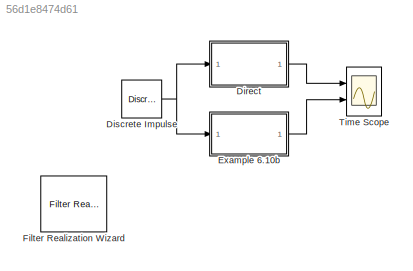
MODEL slx_56d1e8474d61
KIND model
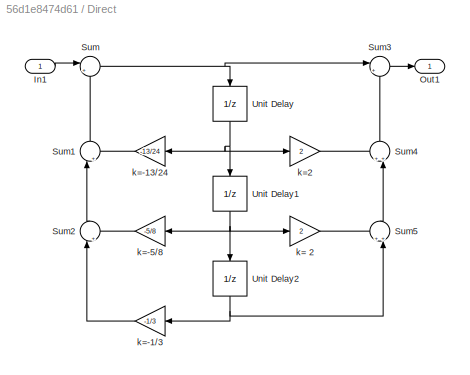
BLOCK [SubSystem] Direct
  Ports = [1, 1]
  RequestExecContextInheritance = off
BLOCK [Inport] Direct/In1
  IconDisplay = Port number
BLOCK [Outport] Direct/Out1
  IconDisplay = Port number
BLOCK [Sum] Direct/Sum
  IconShape = round
  InputSameDT = off
  Inputs = |++
  OutDataTypeStr = Inherit: Inherit via internal rule
  Ports = [2, 1]
  SaturateOnIntegerOverflow = off
BLOCK [Sum] Direct/Sum1
  IconShape = round
  InputSameDT = off
  Inputs = |++
  OutDataTypeStr = Inherit: Inherit via internal rule
  Ports = [2, 1]
  SaturateOnIntegerOverflow = off
BLOCK [Sum] Direct/Sum2
  IconShape = round
  InputSameDT = off
  Inputs = |++
  OutDataTypeStr = Inherit: Inherit via internal rule
  Ports = [2, 1]
  SaturateOnIntegerOverflow = off
BLOCK [Sum] Direct/Sum3
  IconShape = round
  InputSameDT = off
  Inputs = |++
  OutDataTypeStr = Inherit: Inherit via internal rule
  Ports = [2, 1]
  SaturateOnIntegerOverflow = off
BLOCK [Sum] Direct/Sum4
  IconShape = round
  InputSameDT = off
  Inputs = ++|
  OutDataTypeStr = Inherit: Inherit via internal rule
  Ports = [2, 1]
  SaturateOnIntegerOverflow = off
BLOCK [Sum] Direct/Sum5
  IconShape = round
  InputSameDT = off
  Inputs = ++|
  OutDataTypeStr = Inherit: Inherit via internal rule
  Ports = [2, 1]
  SaturateOnIntegerOverflow = off
BLOCK [UnitDelay] Direct/Unit Delay
  SampleTime = -1
BLOCK [UnitDelay] Direct/Unit Delay1
  SampleTime = -1
BLOCK [UnitDelay] Direct/Unit Delay2
  SampleTime = -1
BLOCK [Gain] Direct/k= 2
  Gain = 2
  OutDataTypeStr = Inherit: Inherit via internal rule
  ParamDataTypeStr = Inherit: Inherit via internal rule
  SaturateOnIntegerOverflow = off
BLOCK [Gain] Direct/k=-1//3
  Gain = -1/3
  OutDataTypeStr = Inherit: Inherit via internal rule
  ParamDataTypeStr = Inherit: Inherit via internal rule
  SaturateOnIntegerOverflow = off
BLOCK [Gain] Direct/k=-13//24
  Gain = -13/24
  OutDataTypeStr = Inherit: Inherit via internal rule
  ParamDataTypeStr = Inherit: Inherit via internal rule
  SaturateOnIntegerOverflow = off
BLOCK [Gain] Direct/k=-5//8
  Gain = -5/8
  OutDataTypeStr = Inherit: Inherit via internal rule
  ParamDataTypeStr = Inherit: Inherit via internal rule
  SaturateOnIntegerOverflow = off
BLOCK [Gain] Direct/k=2
  Gain = 2
  OutDataTypeStr = Inherit: Inherit via internal rule
  ParamDataTypeStr = Inherit: Inherit via internal rule
  SaturateOnIntegerOverflow = off
BLOCK [Reference] Discrete Impulse  REF=dspsrcs4/Discrete 
Impulse
  Delay = 0
  FrameSample = 1
  LastOutDataTypeStr = double
  OutDataTypeStr = double
  Ports = [0, 1]
  SampleTime = 1
  SourceBlock = dspsrcs4/Discrete \nImpulse
  SourceType = Discrete Impulse
  additionalParams = off
  allowOverrides = on
  dataType = double
  fracBitsMode = Best precision
  isSigned = on
  numFracBits = 15
  udDataType = sfix(16)
  wordLen = 16
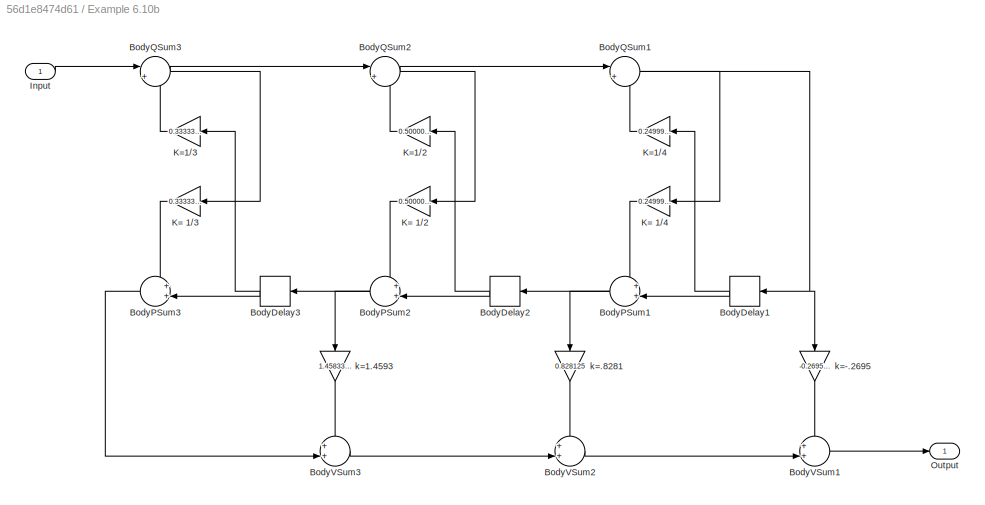
BLOCK [SubSystem] Example 6.10b
  ErrorFcn = dspFilterRealizedInBasicElemsAlgLoopErrFcnCallback
  Ports = [1, 1]
  RequestExecContextInheritance = off
  Tag = FilterWizardSubSystem
  UserDataPersistent = on
BLOCK [Delay] Example 6.10b/BodyDelay1
  DelayLength = 1
  InputPortMap = u0
  InputProcessing = Inherited
  Ports = [1, 1]
BLOCK [Delay] Example 6.10b/BodyDelay2
  DelayLength = 1
  InputPortMap = u0
  InputProcessing = Inherited
  Ports = [1, 1]
BLOCK [Delay] Example 6.10b/BodyDelay3
  DelayLength = 1
  InputPortMap = u0
  InputProcessing = Inherited
  Ports = [1, 1]
BLOCK [Sum] Example 6.10b/BodyPSum1
  IconShape = round
  InputSameDT = off
  Inputs = ++|
  Ports = [2, 1]
  RndMeth = Nearest
BLOCK [Sum] Example 6.10b/BodyPSum2
  IconShape = round
  InputSameDT = off
  Inputs = ++|
  Ports = [2, 1]
  RndMeth = Nearest
BLOCK [Sum] Example 6.10b/BodyPSum3
  IconShape = round
  InputSameDT = off
  Inputs = ++|
  Ports = [2, 1]
  RndMeth = Nearest
BLOCK [Sum] Example 6.10b/BodyQSum1
  IconShape = round
  InputSameDT = off
  Inputs = |+-
  Ports = [2, 1]
  RndMeth = Nearest
BLOCK [Sum] Example 6.10b/BodyQSum2
  IconShape = round
  InputSameDT = off
  Inputs = |+-
  Ports = [2, 1]
  RndMeth = Nearest
BLOCK [Sum] Example 6.10b/BodyQSum3
  IconShape = round
  InputSameDT = off
  Inputs = |+-
  Ports = [2, 1]
  RndMeth = Nearest
BLOCK [Sum] Example 6.10b/BodyVSum1
  IconShape = round
  InputSameDT = off
  Inputs = ++|
  Ports = [2, 1]
  RndMeth = Nearest
BLOCK [Sum] Example 6.10b/BodyVSum2
  IconShape = round
  InputSameDT = off
  Inputs = ++|
  Ports = [2, 1]
  RndMeth = Nearest
BLOCK [Sum] Example 6.10b/BodyVSum3
  IconShape = round
  InputSameDT = off
  Inputs = ++|
  Ports = [2, 1]
  RndMeth = Nearest
BLOCK [Inport] Example 6.10b/Input
  IconDisplay = Port number
BLOCK [Gain] Example 6.10b/K= 1//2
  Gain = 0.50000000000000011
  ParamDataTypeStr = float('double')
  RndMeth = Nearest
BLOCK [Gain] Example 6.10b/K= 1//3
  Gain = 0.33333333333333331
  ParamDataTypeStr = float('double')
  RndMeth = Nearest
BLOCK [Gain] Example 6.10b/K= 1//4
  Gain = 0.24999999999999997
  ParamDataTypeStr = float('double')
  RndMeth = Nearest
BLOCK [Gain] Example 6.10b/K=1//2
  Gain = 0.50000000000000011
  ParamDataTypeStr = float('double')
  RndMeth = Nearest
BLOCK [Gain] Example 6.10b/K=1//3
  Gain = 0.33333333333333331
  ParamDataTypeStr = float('double')
  RndMeth = Nearest
BLOCK [Gain] Example 6.10b/K=1//4
  Gain = 0.24999999999999997
  ParamDataTypeStr = float('double')
  RndMeth = Nearest
BLOCK [Outport] Example 6.10b/Output
  IconDisplay = Port number
BLOCK [Gain] Example 6.10b/k=-.2695
  Gain = -0.26953125000000022
  ParamDataTypeStr = float('double')
  RndMeth = Nearest
BLOCK [Gain] Example 6.10b/k=.8281
  Gain = 0.828125
  ParamDataTypeStr = float('double')
  RndMeth = Nearest
BLOCK [Gain] Example 6.10b/k=1.4593
  Gain = 1.4583333333333335
  ParamDataTypeStr = float('double')
  RndMeth = Nearest
BLOCK [Reference] Filter Realization Wizard  REF=dsparch4/Filter
Realization
Wizard
  Ports = []
  SourceBlock = dsparch4/Filter\nRealization\nWizard
  SourceType = Filter Realization Wizard
BLOCK [Scope] Time Scope
  DataFormat = Structure
  Floating = off
  NumInputPorts = 2
  Ports = [2]
  SampleTime = 0
  ShowLegends = off
  YMax = 5~5
  YMin = -5~-5
LINE Direct/In1:1 -> Direct/Sum:1
LINE Direct/Sum1:1 -> Direct/Sum:2
LINE Direct/Sum2:1 -> Direct/Sum1:1
LINE Direct/Sum3:1 -> Direct/Out1:1
LINE Direct/Sum4:1 -> Direct/Sum3:2
LINE Direct/Sum5:1 -> Direct/Sum4:2
NET Direct/Sum:1 -> Direct/Sum3:1, Direct/Unit Delay:1
NET Direct/Unit Delay1:1 -> Direct/Unit Delay2:1, Direct/k= 2:1, Direct/k=-5//8:1
NET Direct/Unit Delay2:1 -> Direct/Sum5:2, Direct/k=-1//3:1
NET Direct/Unit Delay:1 -> Direct/Unit Delay1:1, Direct/k=-13//24:1, Direct/k=2:1
LINE Direct/k= 2:1 -> Direct/Sum5:1
LINE Direct/k=-1//3:1 -> Direct/Sum2:1
LINE Direct/k=-13//24:1 -> Direct/Sum1:2
LINE Direct/k=-5//8:1 -> Direct/Sum2:2
LINE Direct/k=2:1 -> Direct/Sum4:1
LINE Direct:1 -> Time Scope:1
NET Discrete Impulse:1 -> Direct:1, Example 6.10b:1
NET Example 6.10b/BodyDelay1:1 -> Example 6.10b/BodyPSum1:2, Example 6.10b/K=1//4:1
NET Example 6.10b/BodyDelay2:1 -> Example 6.10b/BodyPSum2:2, Example 6.10b/K=1//2:1
NET Example 6.10b/BodyDelay3:1 -> Example 6.10b/BodyPSum3:2, Example 6.10b/K=1//3:1
NET Example 6.10b/BodyPSum1:1 -> Example 6.10b/BodyDelay2:1, Example 6.10b/k=.8281:1
NET Example 6.10b/BodyPSum2:1 -> Example 6.10b/BodyDelay3:1, Example 6.10b/k=1.4593:1
LINE Example 6.10b/BodyPSum3:1 -> Example 6.10b/BodyVSum3:2
NET Example 6.10b/BodyQSum1:1 -> Example 6.10b/BodyDelay1:1, Example 6.10b/K= 1//4:1, Example 6.10b/k=-.2695:1
NET Example 6.10b/BodyQSum2:1 -> Example 6.10b/BodyQSum1:1, Example 6.10b/K= 1//2:1
NET Example 6.10b/BodyQSum3:1 -> Example 6.10b/BodyQSum2:1, Example 6.10b/K= 1//3:1
LINE Example 6.10b/BodyVSum1:1 -> Example 6.10b/Output:1
LINE Example 6.10b/BodyVSum2:1 -> Example 6.10b/BodyVSum1:2
LINE Example 6.10b/BodyVSum3:1 -> Example 6.10b/BodyVSum2:2
LINE Example 6.10b/Input:1 -> Example 6.10b/BodyQSum3:1
LINE Example 6.10b/K= 1//2:1 -> Example 6.10b/BodyPSum2:1
LINE Example 6.10b/K= 1//3:1 -> Example 6.10b/BodyPSum3:1
LINE Example 6.10b/K= 1//4:1 -> Example 6.10b/BodyPSum1:1
LINE Example 6.10b/K=1//2:1 -> Example 6.10b/BodyQSum2:2
LINE Example 6.10b/K=1//3:1 -> Example 6.10b/BodyQSum3:2
LINE Example 6.10b/K=1//4:1 -> Example 6.10b/BodyQSum1:2
LINE Example 6.10b/k=-.2695:1 -> Example 6.10b/BodyVSum1:1
LINE Example 6.10b/k=.8281:1 -> Example 6.10b/BodyVSum2:1
LINE Example 6.10b/k=1.4593:1 -> Example 6.10b/BodyVSum3:1
LINE Example 6.10b:1 -> Time Scope:2
note: NET lines group one-source signal fan-out (src -> all destinations, sorted); 1:1 wires keep LINE
